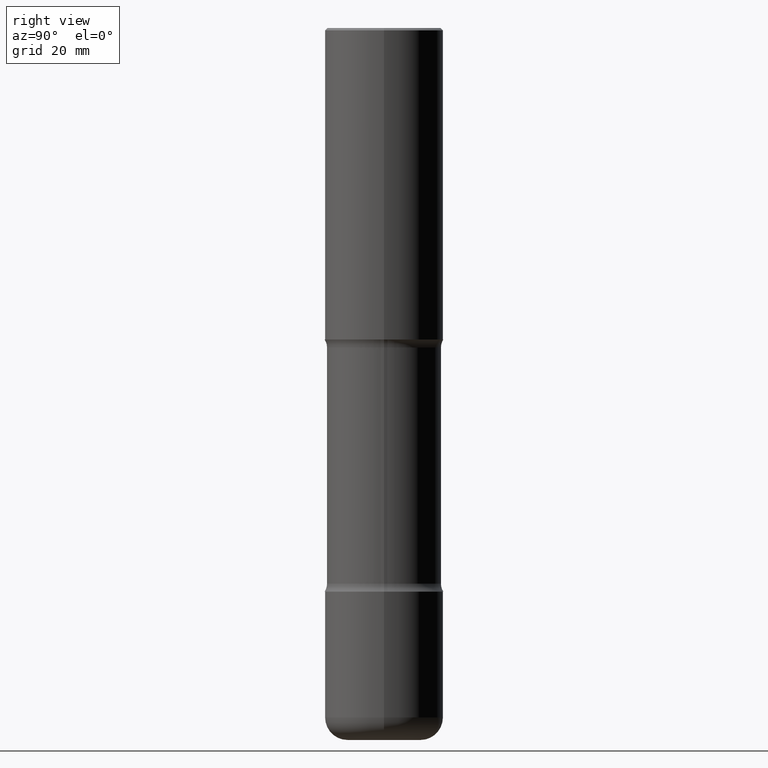
[diagram: clean part render]
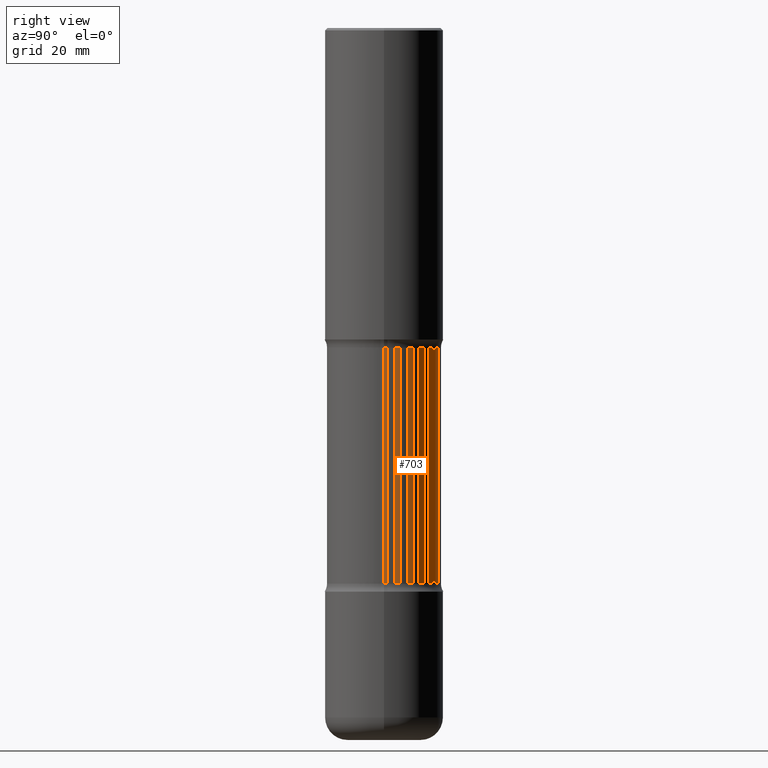
[diagram: same view with one face highlighted and labeled with its STEP entity id]
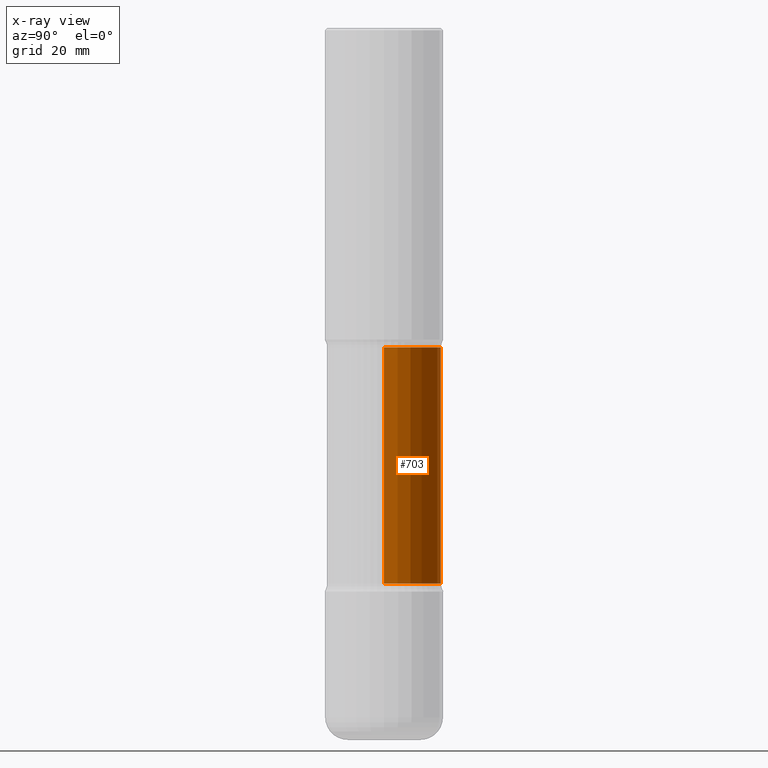
[diagram: x-ray of the same camera — body ghosted, the highlighted face saturated]
A machine part, right view. The second image highlights one B-rep face of the part: STEP entity #703.
The next image is the same camera in x-ray: the body ghosted, the highlighted face saturated — about 0% of this face is hidden behind the body in this view.
In plain terms, the highlighted cylindrical surface (partial cylindrical patch) has radius 12.192 mm, axis along (-0, 0, 1).
Its self-contained STEP definition (entity closure, byte-faithful):
#9 = CARTESIAN_POINT ( 'NONE',  ( -0.4799999999999999267, -5.801881002088561447E-15, -2.692823299831254236 ) ) ;
#28 = ORIENTED_EDGE ( 'NONE', *, *, #56, .T. ) ;
#56 = EDGE_CURVE ( 'NONE', #183, #422, #802, .T. ) ;
#58 = DIRECTION ( 'NONE',  ( -2.445468806185136597E-29, 3.491481338843145583E-15, 1.000000000000000000 ) ) ;
#77 = AXIS2_PLACEMENT_3D ( 'NONE', #175, #307, #416 ) ;
#89 = CIRCLE ( 'NONE', #382, 0.4799999999999999267 ) ;
#94 = EDGE_CURVE ( 'NONE', #719, #183, #162, .T. ) ;
#126 = DIRECTION ( 'NONE',  ( 1.000000000000000000, -6.982962677686265133E-15, 0.000000000000000000 ) ) ;
#139 = CARTESIAN_POINT ( 'NONE',  ( 0.4800000000000000933, -1.251696059975266810E-14, -2.625000000000000444 ) ) ;
#162 = CIRCLE ( 'NONE', #355, 0.4800000000000001488 ) ;
#175 = CARTESIAN_POINT ( 'NONE',  ( 6.419355616235984688E-29, -9.165138514463258190E-15, -2.625000000000000444 ) ) ;
#178 = CARTESIAN_POINT ( 'NONE',  ( 0.4800000000000001488, -1.969955465909477141E-14, -4.682176700168747985 ) ) ;
#183 = VERTEX_POINT ( 'NONE', #289 ) ;
#197 = CARTESIAN_POINT ( 'NONE',  ( 1.145011706530952997E-28, -1.634773257380536149E-14, -4.682176700168747985 ) ) ;
#248 = CYLINDRICAL_SURFACE ( 'NONE', #77, 0.4800000000000000933 ) ;
#265 = CARTESIAN_POINT ( 'NONE',  ( -0.4800000000000000933, -5.754533382814777424E-15, -2.625000000000000444 ) ) ;
#288 = ORIENTED_EDGE ( 'NONE', *, *, #499, .F. ) ;
#289 = CARTESIAN_POINT ( 'NONE',  ( -0.4800000000000002043, -1.298447506143066159E-14, -4.682176700168747985 ) ) ;
#301 = ORIENTED_EDGE ( 'NONE', *, *, #94, .T. ) ;
#307 = DIRECTION ( 'NONE',  ( -2.445468806185136597E-29, 3.491481338843145583E-15, 1.000000000000000000 ) ) ;
#348 = CARTESIAN_POINT ( 'NONE',  ( 6.585215380305856913E-29, -9.401942300162846399E-15, -2.692823299831254236 ) ) ;
#355 = AXIS2_PLACEMENT_3D ( 'NONE', #197, #381, #437 ) ;
#381 = DIRECTION ( 'NONE',  ( -2.445468806185136597E-29, 3.491481338843145583E-15, 1.000000000000000000 ) ) ;
#382 = AXIS2_PLACEMENT_3D ( 'NONE', #348, #58, #126 ) ;
#385 = EDGE_LOOP ( 'NONE', ( #301, #28, #288, #564 ) ) ;
#386 = DIRECTION ( 'NONE',  ( -2.445468806185136877E-29, 3.491481338843145188E-15, 1.000000000000000000 ) ) ;
#415 = VECTOR ( 'NONE', #386, 39.37007874015748143 ) ;
#416 = DIRECTION ( 'NONE',  ( 1.000000000000000000, -6.982962677686266711E-15, 0.000000000000000000 ) ) ;
#422 = VERTEX_POINT ( 'NONE', #9 ) ;
#437 = DIRECTION ( 'NONE',  ( 1.000000000000000000, -6.982962677686269866E-15, 0.000000000000000000 ) ) ;
#499 = EDGE_CURVE ( 'NONE', #500, #422, #89, .T. ) ;
#500 = VERTEX_POINT ( 'NONE', #738 ) ;
#527 = EDGE_CURVE ( 'NONE', #719, #500, #705, .T. ) ;
#564 = ORIENTED_EDGE ( 'NONE', *, *, #527, .F. ) ;
#568 = DIRECTION ( 'NONE',  ( -2.445468806185136877E-29, 3.491481338843145188E-15, 1.000000000000000000 ) ) ;
#623 = VECTOR ( 'NONE', #568, 39.37007874015748143 ) ;
#703 = ADVANCED_FACE ( 'NONE', ( #725 ), #248, .T. ) ;
#705 = LINE ( 'NONE', #139, #623 ) ;
#719 = VERTEX_POINT ( 'NONE', #178 ) ;
#725 = FACE_OUTER_BOUND ( 'NONE', #385, .T. ) ;
#738 = CARTESIAN_POINT ( 'NONE',  ( 0.4799999999999999267, -1.275376438545225316E-14, -2.692823299831254236 ) ) ;
#802 = LINE ( 'NONE', #265, #415 ) ;